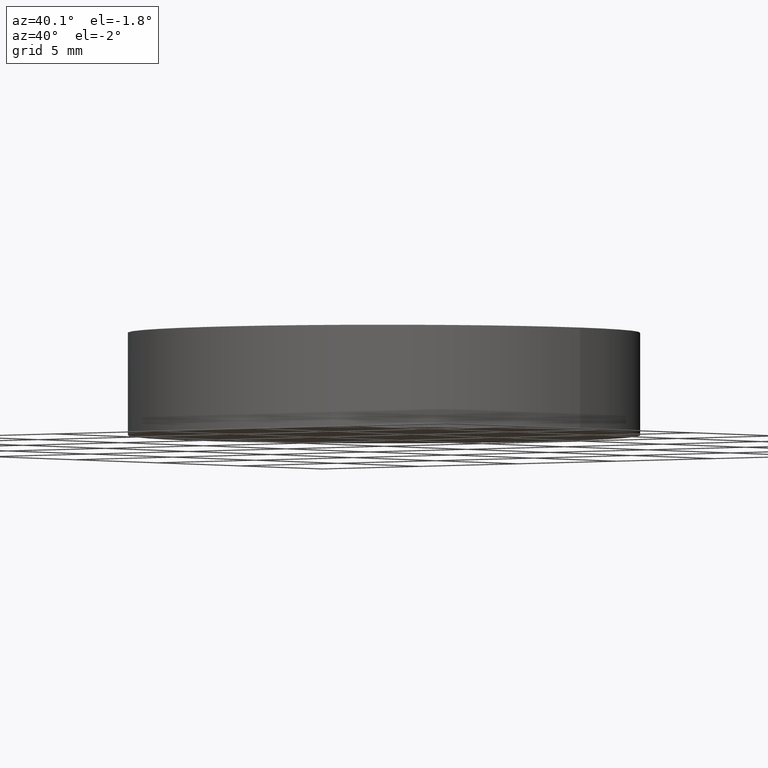
[diagram: clean part render]
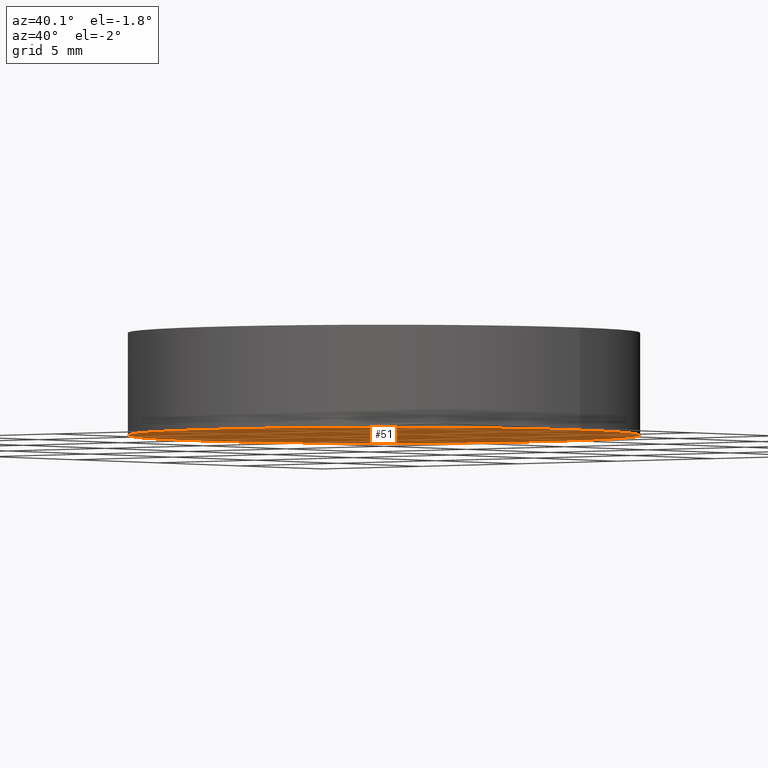
[diagram: same view with one face highlighted and labeled with its STEP entity id]
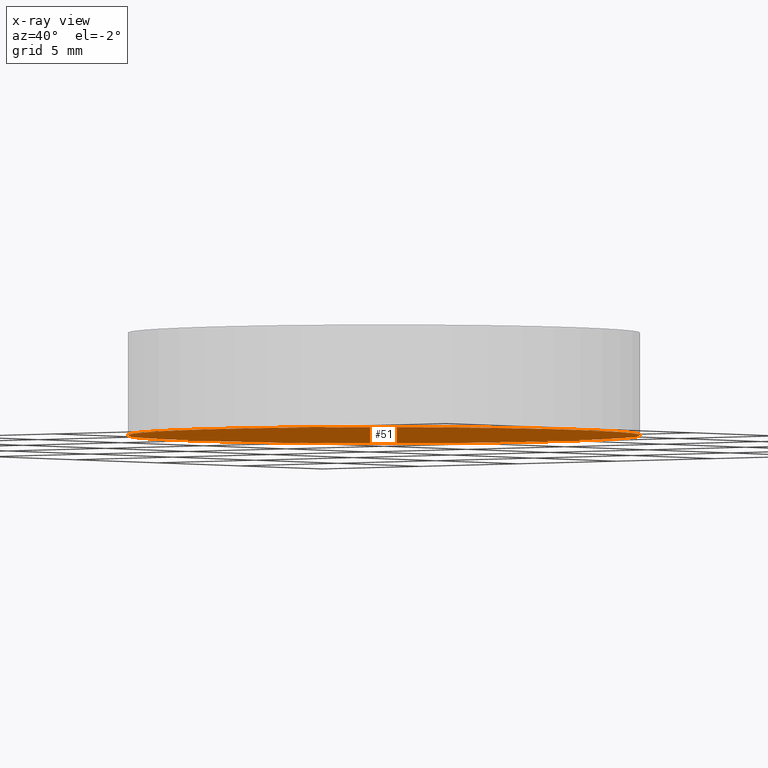
[diagram: x-ray of the same camera — body ghosted, the highlighted face saturated]
A machine part, auxiliary view. The second image highlights one B-rep face of the part: STEP entity #51.
The next image is the same camera in x-ray: the body ghosted, the highlighted face saturated — about 0% of this face is hidden behind the body in this view.
In plain terms, the highlighted planar face has unit normal (0, 0, 1).
Its self-contained STEP definition (entity closure, byte-faithful):
#1 = VERTEX_POINT ( 'NONE', #52 ) ;
#3 = EDGE_LOOP ( 'NONE', ( #108, #114 ) ) ;
#5 = EDGE_CURVE ( 'NONE', #1, #15, #89, .T. ) ;
#15 = VERTEX_POINT ( 'NONE', #48 ) ;
#17 = DIRECTION ( 'NONE',  ( 1.000000000000000000, 0.0000000000000000000, -0.0000000000000000000 ) ) ;
#44 = DIRECTION ( 'NONE',  ( 0.0000000000000000000, 0.0000000000000000000, 1.000000000000000000 ) ) ;
#45 = AXIS2_PLACEMENT_3D ( 'NONE', #49, #125, #61 ) ;
#48 = CARTESIAN_POINT ( 'NONE',  ( -10.00000000000000000, 0.0000000000000000000, 0.0000000000000000000 ) ) ;
#49 = CARTESIAN_POINT ( 'NONE',  ( 0.0000000000000000000, 0.0000000000000000000, 0.0000000000000000000 ) ) ;
#51 = ADVANCED_FACE ( 'NONE', ( #117 ), #123, .F. ) ;
#52 = CARTESIAN_POINT ( 'NONE',  ( 10.00000000000000000, 1.224646799147353300E-015, 0.0000000000000000000 ) ) ;
#61 = DIRECTION ( 'NONE',  ( 1.000000000000000000, 0.0000000000000000000, 0.0000000000000000000 ) ) ;
#64 = AXIS2_PLACEMENT_3D ( 'NONE', #100, #76, #17 ) ;
#67 = AXIS2_PLACEMENT_3D ( 'NONE', #133, #44, #104 ) ;
#76 = DIRECTION ( 'NONE',  ( 0.0000000000000000000, 0.0000000000000000000, 1.000000000000000000 ) ) ;
#89 = CIRCLE ( 'NONE', #67, 10.00000000000000000 ) ;
#100 = CARTESIAN_POINT ( 'NONE',  ( 0.0000000000000000000, 0.0000000000000000000, 0.0000000000000000000 ) ) ;
#104 = DIRECTION ( 'NONE',  ( 1.000000000000000000, 0.0000000000000000000, 0.0000000000000000000 ) ) ;
#108 = ORIENTED_EDGE ( 'NONE', *, *, #128, .F. ) ;
#114 = ORIENTED_EDGE ( 'NONE', *, *, #5, .F. ) ;
#117 = FACE_OUTER_BOUND ( 'NONE', #3, .T. ) ;
#123 = PLANE ( 'NONE',  #64 ) ;
#125 = DIRECTION ( 'NONE',  ( 0.0000000000000000000, 0.0000000000000000000, 1.000000000000000000 ) ) ;
#128 = EDGE_CURVE ( 'NONE', #15, #1, #139, .T. ) ;
#133 = CARTESIAN_POINT ( 'NONE',  ( 0.0000000000000000000, 0.0000000000000000000, 0.0000000000000000000 ) ) ;
#139 = CIRCLE ( 'NONE', #45, 10.00000000000000000 ) ;